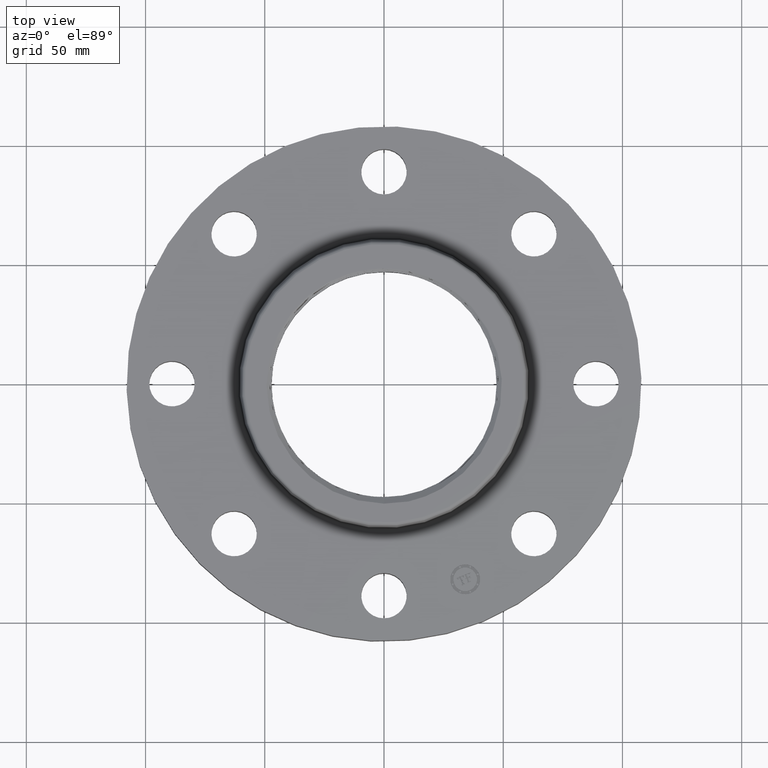
[diagram: clean part render]
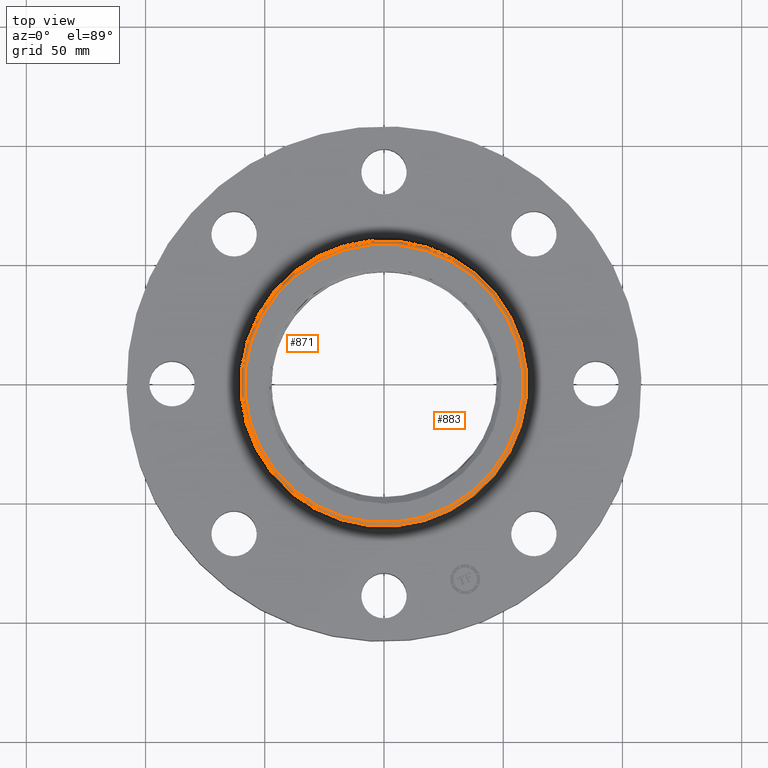
[diagram: same view with one multi-face feature highlighted, each face labeled with its STEP entity id]
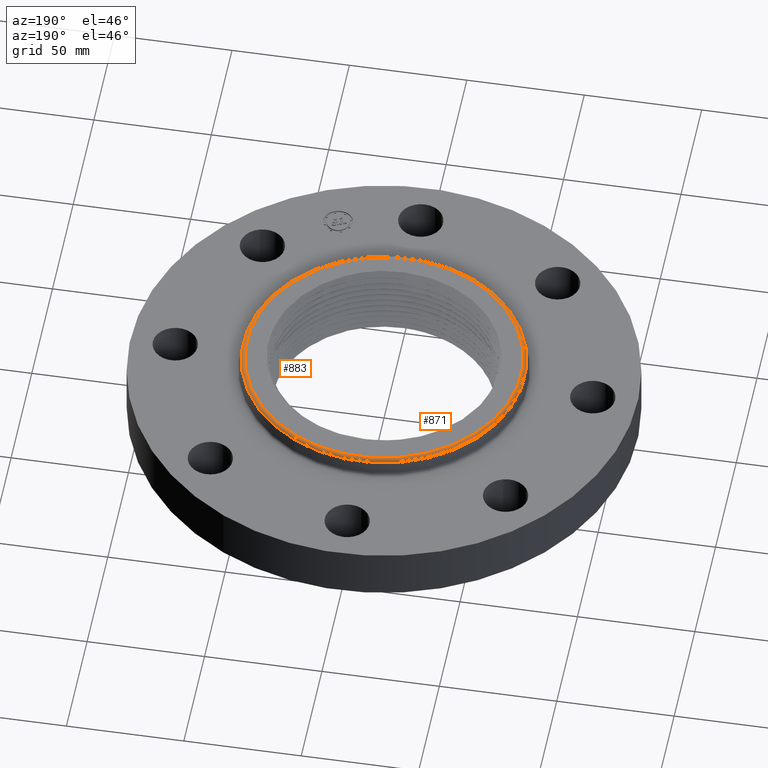
[diagram: same view with one multi-face feature highlighted, each face labeled with its STEP entity id]
A machine part, top view. The highlighted faces form ONE feature: a constant-radius fillet chain: 2 tangent blend faces with common blend radius 1.524 mm. The faces share edges in the B-rep.
A second angle (auxiliary view) of the same feature is appended — it is thin or edge-on in the first view.
Their STEP definitions:
[1] entity #871 (Torus):
#199=AXIS2_PLACEMENT_3D('Circle Axis2P3D',#197,#198,$) ;
#844=AXIS2_PLACEMENT_3D('Torus Axis2P3D',#841,#842,#843) ;
#848=AXIS2_PLACEMENT_3D('Circle Axis2P3D',#846,#847,$) ;
#857=AXIS2_PLACEMENT_3D('Circle Axis2P3D',#855,#856,$) ;
#862=AXIS2_PLACEMENT_3D('Circle Axis2P3D',#860,#861,$) ;
#192=CARTESIAN_POINT('Vertex',(1.1026752189,2.01843344924,1.19)) ;
#194=CARTESIAN_POINT('Vertex',(-1.1026752189,-2.01843344924,1.19)) ;
#197=CARTESIAN_POINT('Axis2P3D Location',(0.,0.,1.19)) ;
#841=CARTESIAN_POINT('Axis2P3D Location',(0.,0.,1.13)) ;
#846=CARTESIAN_POINT('Axis2P3D Location',(0.,0.,1.14041889066)) ;
#850=CARTESIAN_POINT('Vertex',(-1.13100373815,-2.07028845589,1.14041889066)) ;
#852=CARTESIAN_POINT('Vertex',(1.13100373815,2.07028845589,1.14041889066)) ;
#855=CARTESIAN_POINT('Axis2P3D Location',(-1.1026752189,-2.01843344924,1.13)) ;
#860=CARTESIAN_POINT('Axis2P3D Location',(1.1026752189,2.01843344924,1.13)) ;
#198=DIRECTION('Axis2P3D Direction',(0.,0.,-0.0393700787402)) ;
#842=DIRECTION('Axis2P3D Direction',(0.,0.,-0.0393700787402)) ;
#843=DIRECTION('Axis2P3D XDirection',(0.0188750212049,0.0345504945626,0.)) ;
#847=DIRECTION('Axis2P3D Direction',(0.,0.,-0.0393700787402)) ;
#856=DIRECTION('Axis2P3D Direction',(0.0345504945626,-0.0188750212049,0.)) ;
#861=DIRECTION('Axis2P3D Direction',(-0.0345504945626,0.0188750212049,0.)) ;
#866=ORIENTED_EDGE('',*,*,#854,.F.) ;
#867=ORIENTED_EDGE('',*,*,#859,.T.) ;
#868=ORIENTED_EDGE('',*,*,#201,.T.) ;
#869=ORIENTED_EDGE('',*,*,#864,.F.) ;
#871=ADVANCED_FACE('PartBody',(#870),#845,.T.) ;
#200=CIRCLE('generated circle',#199,2.29999265812) ;
#849=CIRCLE('generated circle',#848,2.3590811233) ;
#858=CIRCLE('generated circle',#857,0.0600000000002) ;
#863=CIRCLE('generated circle',#862,0.0600000000002) ;
#845=TOROIDAL_SURFACE('homeo Torus',#844,2.29999265812,0.0600000000002) ;
#201=EDGE_CURVE('',#195,#193,#200,.T.) ;
#854=EDGE_CURVE('',#851,#853,#849,.T.) ;
#859=EDGE_CURVE('',#851,#195,#858,.F.) ;
#864=EDGE_CURVE('',#853,#193,#863,.F.) ;
#865=EDGE_LOOP('',(#866,#867,#868,#869)) ;
#870=FACE_OUTER_BOUND('',#865,.T.) ;
#193=VERTEX_POINT('',#192) ;
#195=VERTEX_POINT('',#194) ;
#851=VERTEX_POINT('',#850) ;
#853=VERTEX_POINT('',#852) ;
[2] entity #883 (Torus):
#190=AXIS2_PLACEMENT_3D('Circle Axis2P3D',#188,#189,$) ;
#844=AXIS2_PLACEMENT_3D('Torus Axis2P3D',#841,#842,#843) ;
#857=AXIS2_PLACEMENT_3D('Circle Axis2P3D',#855,#856,$) ;
#862=AXIS2_PLACEMENT_3D('Circle Axis2P3D',#860,#861,$) ;
#874=AXIS2_PLACEMENT_3D('Circle Axis2P3D',#872,#873,$) ;
#188=CARTESIAN_POINT('Axis2P3D Location',(0.,0.,1.19)) ;
#192=CARTESIAN_POINT('Vertex',(1.1026752189,2.01843344924,1.19)) ;
#194=CARTESIAN_POINT('Vertex',(-1.1026752189,-2.01843344924,1.19)) ;
#841=CARTESIAN_POINT('Axis2P3D Location',(0.,0.,1.13)) ;
#850=CARTESIAN_POINT('Vertex',(-1.13100373815,-2.07028845589,1.14041889066)) ;
#852=CARTESIAN_POINT('Vertex',(1.13100373815,2.07028845589,1.14041889066)) ;
#855=CARTESIAN_POINT('Axis2P3D Location',(-1.1026752189,-2.01843344924,1.13)) ;
#860=CARTESIAN_POINT('Axis2P3D Location',(1.1026752189,2.01843344924,1.13)) ;
#872=CARTESIAN_POINT('Axis2P3D Location',(0.,0.,1.14041889066)) ;
#189=DIRECTION('Axis2P3D Direction',(0.,0.,-0.0393700787402)) ;
#842=DIRECTION('Axis2P3D Direction',(0.,0.,-0.0393700787402)) ;
#843=DIRECTION('Axis2P3D XDirection',(0.0188750212049,0.0345504945626,0.)) ;
#856=DIRECTION('Axis2P3D Direction',(0.0345504945626,-0.0188750212049,0.)) ;
#861=DIRECTION('Axis2P3D Direction',(-0.0345504945626,0.0188750212049,0.)) ;
#873=DIRECTION('Axis2P3D Direction',(0.,0.,-0.0393700787402)) ;
#878=ORIENTED_EDGE('',*,*,#876,.F.) ;
#879=ORIENTED_EDGE('',*,*,#864,.T.) ;
#880=ORIENTED_EDGE('',*,*,#196,.T.) ;
#881=ORIENTED_EDGE('',*,*,#859,.F.) ;
#883=ADVANCED_FACE('PartBody',(#882),#845,.T.) ;
#191=CIRCLE('generated circle',#190,2.29999265812) ;
#858=CIRCLE('generated circle',#857,0.0600000000002) ;
#863=CIRCLE('generated circle',#862,0.0600000000002) ;
#875=CIRCLE('generated circle',#874,2.3590811233) ;
#845=TOROIDAL_SURFACE('homeo Torus',#844,2.29999265812,0.0600000000002) ;
#196=EDGE_CURVE('',#193,#195,#191,.T.) ;
#859=EDGE_CURVE('',#851,#195,#858,.F.) ;
#864=EDGE_CURVE('',#853,#193,#863,.F.) ;
#876=EDGE_CURVE('',#853,#851,#875,.T.) ;
#877=EDGE_LOOP('',(#878,#879,#880,#881)) ;
#882=FACE_OUTER_BOUND('',#877,.T.) ;
#193=VERTEX_POINT('',#192) ;
#195=VERTEX_POINT('',#194) ;
#851=VERTEX_POINT('',#850) ;
#853=VERTEX_POINT('',#852) ;